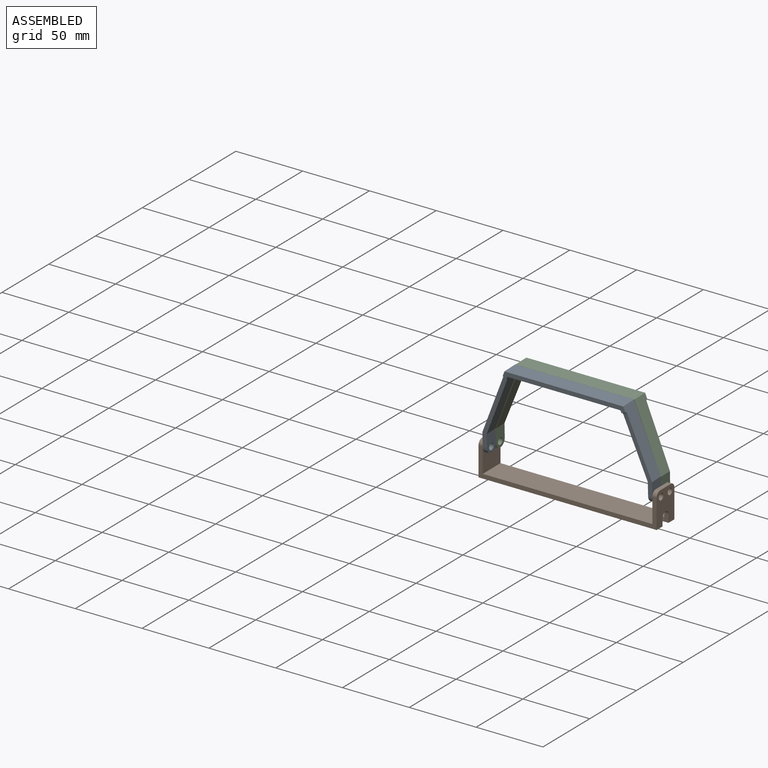
[diagram: assembled view]
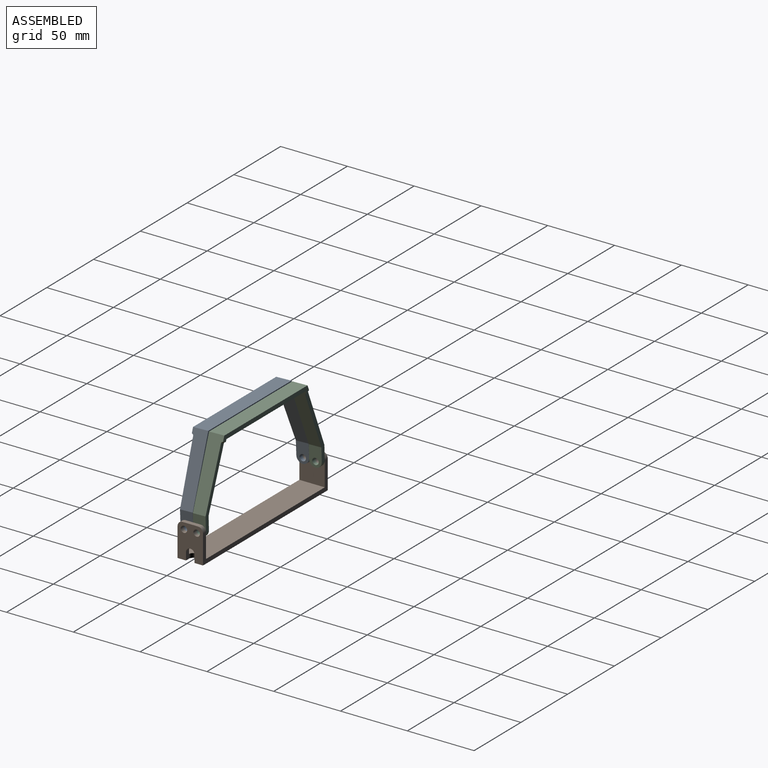
[diagram: assembled view, second angle]
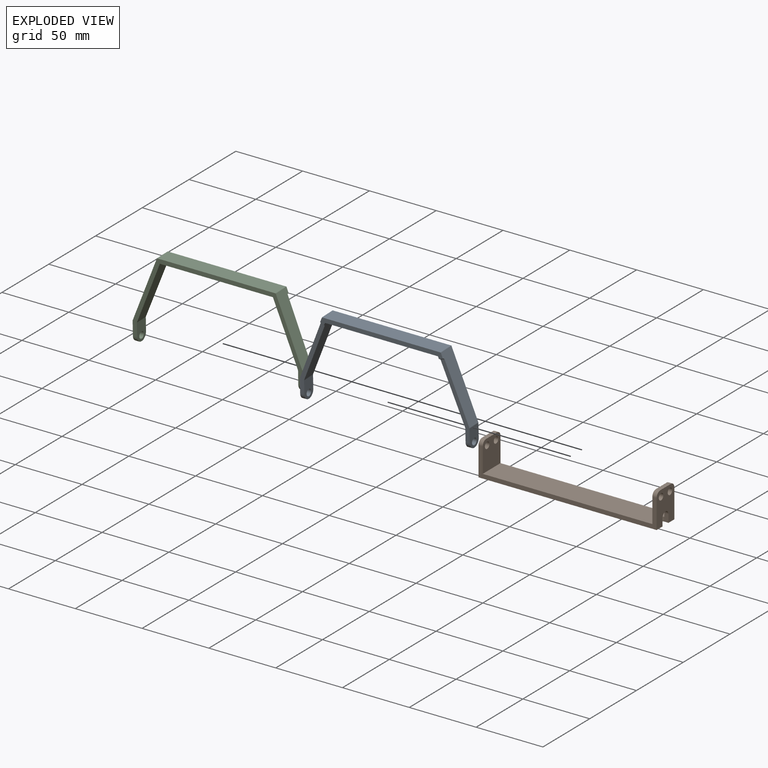
[diagram: exploded view]
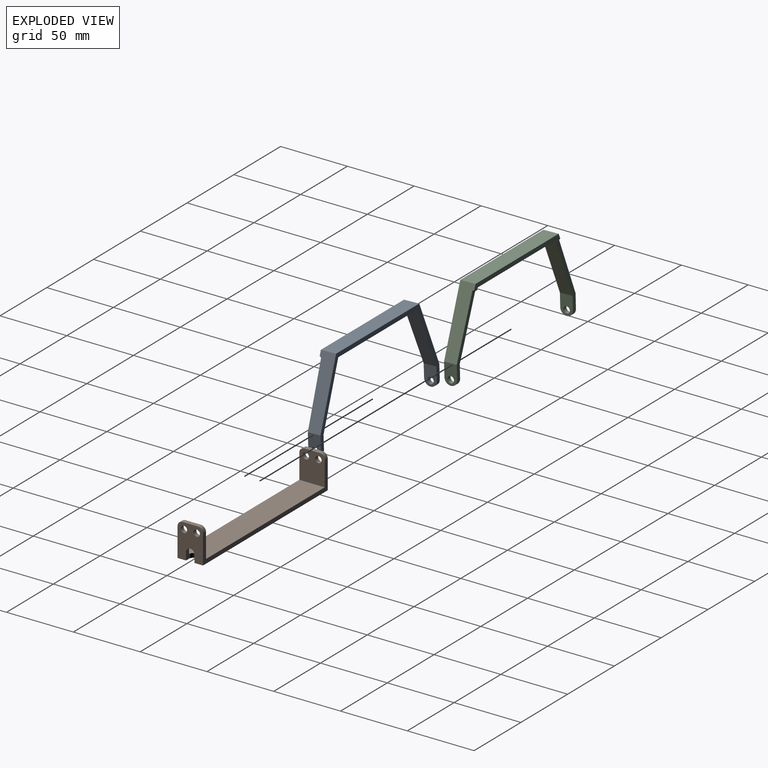
[diagram: exploded view, second angle]
ASSEMBLY  parts=3 mates=4
PART A: 22 faces, bbox 127x11.4x62.9 mm
  f0: plane 45.06x18.02mm, normal (-0.93,0,-0.37), area 481.6mm2, adj f1,f3,f11,f13,f18,f19
  f1: plane 91.91x4.94mm, normal (0,-1,0), area 294.4mm2, adj f0,f5,f6,f7,f10,f11,f19,f21
  f2: plane 10.49x3.19mm, normal (0,-1,0), area 32.3mm2, adj f3,f4,f17,f18
  f3: plane 14.63x9.53mm, normal (-1,0,0), area 111.3mm2, adj f0,f2,f13,f15,f17
  f4: plane 15.24x9.53mm, normal (1,0,0), area 117.1mm2, adj f2,f5,f13,f15,f17
  f5: plane 47.63x19.05mm, normal (0.93,0,0.37), area 512mm2, adj f1,f4,f6,f13,f18,f19
  f6: plane 88.9x11.43mm, normal (0,0,1), area 1016.1mm2, adj f1,f5,f7,f13
  f7: plane 47.63x19.05mm, normal (-0.93,0,0.37), area 512mm2, adj f1,f6,f8,f13,f20,f21
  f8: plane 15.24x9.53mm, normal (-1,0,0), area 117.1mm2, adj f7,f12,f13,f14,f16
  f9: plane 14.63x9.53mm, normal (1,0,0), area 111.3mm2, adj f10,f12,f13,f14,f16
  f10: plane 45.06x18.02mm, normal (0.93,0,-0.37), area 481.6mm2, adj f1,f9,f11,f13,f20,f21
  f11: plane 84.6x11.43mm, normal (0,0,-1), area 967mm2, adj f0,f1,f10,f13
  f12: plane 10.49x3.19mm, normal (0,-1,0), area 32.3mm2, adj f8,f9,f16,f20
  f13: plane 127x58.1mm, normal (0,1,0), area 657mm2, adj f0,f3,f4,f5,f6,f7,f8,f9
  f14: cylinder r=2.41mm len=4.83mm, axis (-1,0,0), area 48.1mm2, adj f8,f9
  f15: cylinder r=2.41mm len=4.83mm, axis (-1,0,0), area 48.1mm2, adj f3,f4
  f16: cylinder r=4.76mm len=9.53mm, axis (-1,0,0), area 47.5mm2, adj f8,f9,f12,f13
  f17: cylinder r=4.76mm len=9.53mm, axis (-1,0,0), area 47.5mm2, adj f2,f3,f4,f13
  f18: plane 43.31x20.04mm, normal (0.01,-1,-0.01), area 145mm2, adj f0,f2,f5,f19
  f19: cylinder r=1.27mm len=3.42mm, axis (0.93,0,0.37), area 6.3mm2, adj f0,f1,f5,f18
  f20: plane 43.33x20.04mm, normal (-0.01,-1,-0.01), area 145.1mm2, adj f7,f10,f12,f21
  f21: cylinder r=1.27mm len=3.41mm, axis (-0.93,0,0.37), area 6.3mm2, adj f1,f7,f10,f20
PART B: 22 faces, bbox 133.4x19.1x25.4 mm
  f0: plane 133.35x19.05mm, normal (0,0,-1), area 2504.3mm2, adj f1,f7,f8,f9,f18,f19,f20
  f1: plane 25.4x19.05mm, normal (1,0,0), area 388.9mm2, adj f0,f4,f8,f9,f12,f13,f15,f17
  f2: plane 22.23x19.05mm, normal (-1,0,0), area 348.6mm2, adj f3,f4,f8,f9,f12,f13,f15,f17
  f3: plane 127x19.05mm, normal (0,0,1), area 2403.5mm2, adj f2,f5,f8,f9,f20
  f4: plane 11.43x3.18mm, normal (0,0,1), area 36.3mm2, adj f1,f2,f15,f17
  f5: plane 22.23x19.05mm, normal (1,0,0), area 380.6mm2, adj f3,f6,f8,f9,f10,f11,f14,f16
  f6: plane 11.43x3.18mm, normal (0,0,1), area 36.3mm2, adj f5,f7,f14,f16
  f7: plane 25.4x19.05mm, normal (-1,0,0), area 441.1mm2, adj f0,f6,f8,f9,f10,f11,f14,f16
  f8: plane 133.35x21.59mm, normal (0,-1,0), area 540.3mm2, adj f0,f1,f2,f3,f5,f7,f16,f17
  f9: plane 133.35x21.59mm, normal (0,1,0), area 540.3mm2, adj f0,f1,f2,f3,f5,f7,f14,f15
  f10: cylinder r=2.41mm len=4.83mm, axis (1,0,0), area 48.1mm2, adj f5,f7
  f11: cylinder r=2.41mm len=4.83mm, axis (1,0,0), area 48.1mm2, adj f5,f7
  f12: cylinder r=2.41mm len=4.83mm, axis (1,0,0), area 48.1mm2, adj f1,f2
  f13: cylinder r=2.41mm len=4.83mm, axis (1,0,0), area 48.1mm2, adj f1,f2
  f14: cylinder r=3.81mm len=3.81mm, axis (-1,0,0), area 19mm2, adj f5,f6,f7,f9
  f15: cylinder r=3.81mm len=3.81mm, axis (-1,0,0), area 19mm2, adj f1,f2,f4,f9
  f16: cylinder r=3.81mm len=3.81mm, axis (1,0,0), area 19mm2, adj f5,f6,f7,f8
  f17: cylinder r=3.81mm len=3.81mm, axis (1,0,0), area 19mm2, adj f1,f2,f4,f8
  f18: plane 5.72x3.18mm, normal (0,-1,0), area 18.1mm2, adj f0,f1,f2,f20,f21
  f19: plane 5.72x3.18mm, normal (0,1,0), area 18.1mm2, adj f0,f1,f2,f20,f21
  f20: cylinder r=3.17mm len=6.35mm, axis (0,0,-1), area 31.7mm2, adj f0,f3,f18,f19
  f21: cylinder r=3.17mm len=6.35mm, axis (1,0,0), area 31.7mm2, adj f1,f2,f18,f19
PART C: same geometry as A
PLACE A rot(axis=(1,0,0),2deg) t=(-50.67,3.35,-2.98)mm
PLACE B t=(12.83,12.71,-17.44)mm fixed
PLACE C rot(axis=(0,0.01,-1),180deg) t=(76.33,3.31,-3.27)mm
MATE planar C.f4 <-> B.f5  axis (-1,0,0) through (-50.67,7.84,6.19)mm
MATE cylindrical A.f14 <-> B.f10  axis (1,0,0) through (-47.5,-1.57,1.61)mm
MATE cylindrical C.f14 <-> B.f11  axis (1,0,0) through (-47.5,7.95,1.61)mm
MATE planar A.f8 <-> B.f5  axis (-1,0,0) through (-50.67,-1.73,6.19)mm
